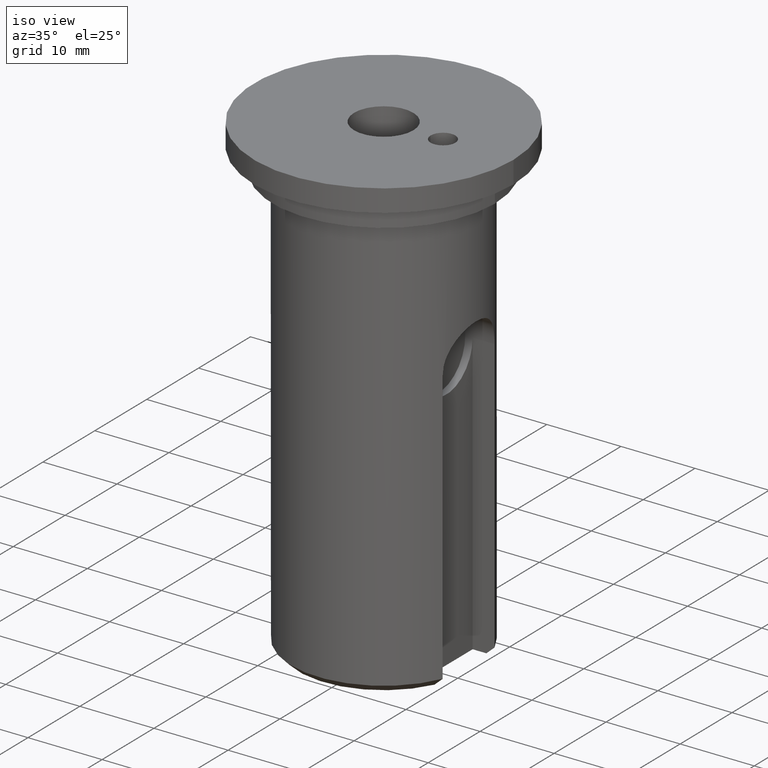
[diagram: clean part render]
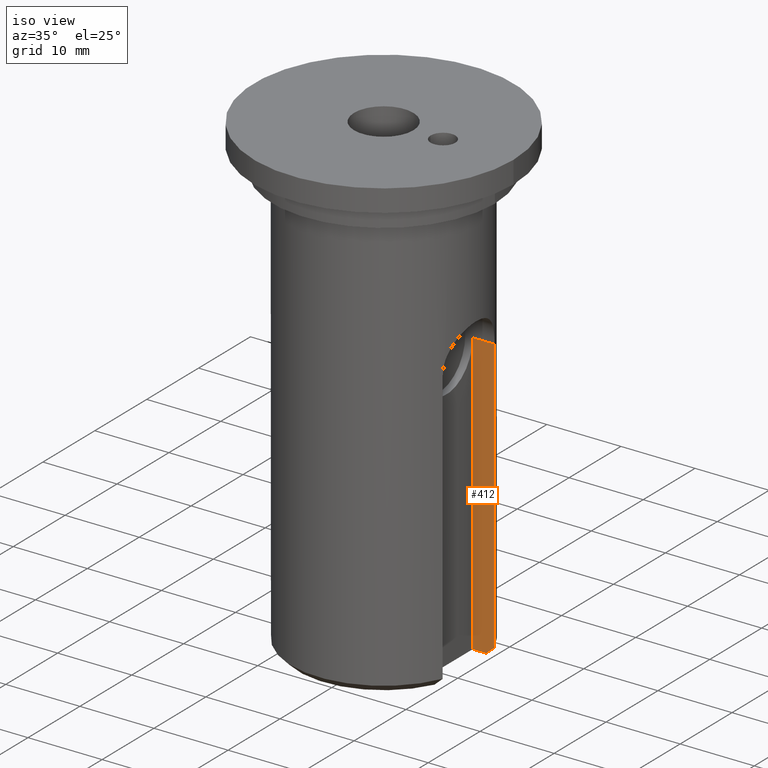
[diagram: same view with one face highlighted and labeled with its STEP entity id]
A machine part, iso view. The second image highlights one B-rep face of the part: STEP entity #412.
In plain terms, the highlighted planar face has unit normal (0, 1, 0).
Its self-contained STEP definition (entity closure, byte-faithful):
#26=(
BOUNDED_CURVE()
B_SPLINE_CURVE(2,(#690,#691,#692),.UNSPECIFIED.,.F.,.F.)
B_SPLINE_CURVE_WITH_KNOTS((3,3),(0.,0.148681884146899),.UNSPECIFIED.)
CURVE()
GEOMETRIC_REPRESENTATION_ITEM()
RATIONAL_B_SPLINE_CURVE((1.,1.00105254461095,1.))
REPRESENTATION_ITEM('')
);
#32=PLANE('',#454);
#46=FACE_OUTER_BOUND('',#69,.T.);
#69=EDGE_LOOP('',(#309,#310,#311,#312,#313));
#111=LINE('',#677,#138);
#114=LINE('',#684,#141);
#115=LINE('',#687,#142);
#116=LINE('',#689,#143);
#138=VECTOR('',#512,10.);
#141=VECTOR('',#519,10.);
#142=VECTOR('',#522,10.);
#143=VECTOR('',#523,10.);
#188=VERTEX_POINT('',#649);
#191=VERTEX_POINT('',#675);
#193=VERTEX_POINT('',#682);
#194=VERTEX_POINT('',#686);
#195=VERTEX_POINT('',#688);
#235=EDGE_CURVE('',#188,#191,#111,.T.);
#238=EDGE_CURVE('',#191,#193,#114,.T.);
#239=EDGE_CURVE('',#188,#194,#115,.T.);
#240=EDGE_CURVE('',#195,#193,#116,.T.);
#241=EDGE_CURVE('',#194,#195,#26,.T.);
#309=ORIENTED_EDGE('',*,*,#239,.F.);
#310=ORIENTED_EDGE('',*,*,#235,.T.);
#311=ORIENTED_EDGE('',*,*,#238,.T.);
#312=ORIENTED_EDGE('',*,*,#240,.F.);
#313=ORIENTED_EDGE('',*,*,#241,.F.);
#412=ADVANCED_FACE('',(#46),#32,.F.);
#454=AXIS2_PLACEMENT_3D('',#685,#520,#521);
#512=DIRECTION('',(-1.,0.,0.));
#519=DIRECTION('',(0.,5.84327907697451E-17,-1.));
#520=DIRECTION('center_axis',(0.,1.,5.84327907697451E-17));
#521=DIRECTION('ref_axis',(0.,5.84327907697451E-17,-1.));
#522=DIRECTION('',(0.,0.,-1.));
#523=DIRECTION('',(-1.,0.,0.));
#649=CARTESIAN_POINT('',(11.4564392373896,5.,-26.));
#675=CARTESIAN_POINT('',(8.49999999999999,5.,-26.));
#677=CARTESIAN_POINT('',(12.5,5.,-26.));
#682=CARTESIAN_POINT('',(8.49999999999999,5.,-64.));
#684=CARTESIAN_POINT('',(8.49999999999999,5.,-26.));
#685=CARTESIAN_POINT('Origin',(12.5,5.,-26.));
#686=CARTESIAN_POINT('',(11.4564392373896,5.,-63.));
#687=CARTESIAN_POINT('',(11.4564392373896,5.,-35.));
#688=CARTESIAN_POINT('',(10.356157588604,5.,-64.));
#689=CARTESIAN_POINT('',(3.74999999999988,5.,-64.));
#690=CARTESIAN_POINT('Ctrl Pts',(11.4564392373896,5.,-63.));
#691=CARTESIAN_POINT('Ctrl Pts',(10.883375878648,5.,-63.5252212438878));
#692=CARTESIAN_POINT('Ctrl Pts',(10.356157588604,5.,-64.));